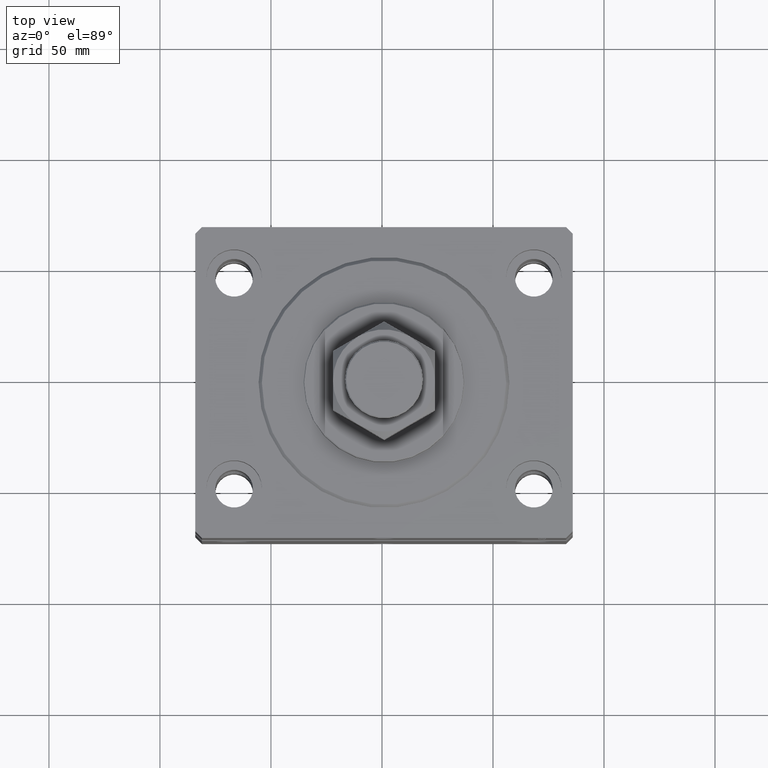
[diagram: clean part render]
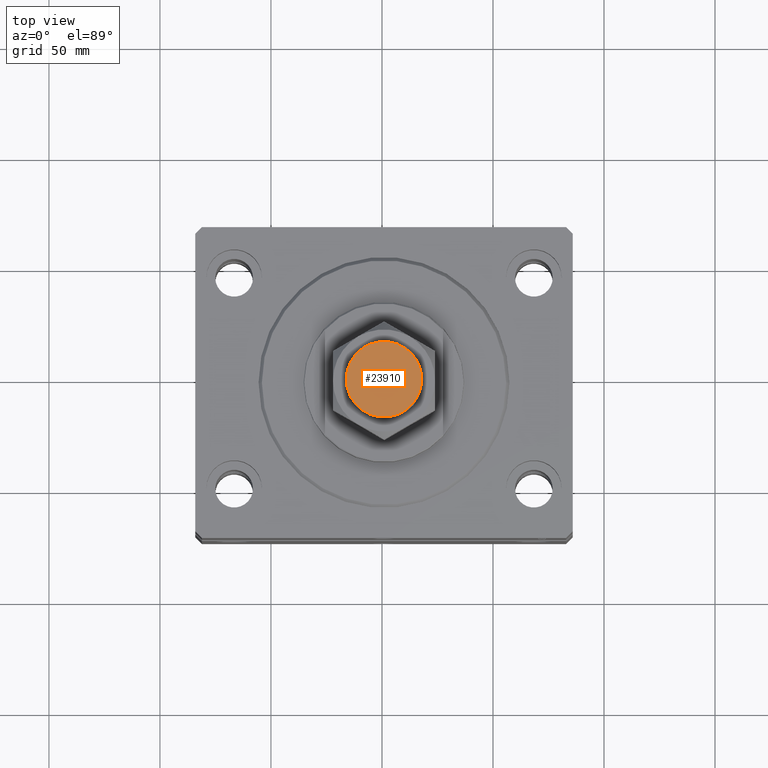
[diagram: same view with one face highlighted and labeled with its STEP entity id]
A machine part, top view. The second image highlights one B-rep face of the part: STEP entity #23910.
In plain terms, the highlighted planar face has unit normal (0, 0, 1).
Its self-contained STEP definition (entity closure, byte-faithful):
#2542 = EDGE_CURVE ( 'NONE', #10447, #3091, #17461, .T. ) ;
#3091 = VERTEX_POINT ( 'NONE', #35526 ) ;
#5760 = CARTESIAN_POINT ( 'NONE',  ( -16.99999999999998579, 0.000000000000000000, 60.00000000000000000 ) ) ;
#9529 = DIRECTION ( 'NONE',  ( 1.000000000000000000, 0.000000000000000000, 0.000000000000000000 ) ) ;
#10447 = VERTEX_POINT ( 'NONE', #5760 ) ;
#10613 = CARTESIAN_POINT ( 'NONE',  ( 0.000000000000000000, 0.000000000000000000, 60.00000000000000000 ) ) ;
#11516 = PLANE ( 'NONE',  #45991 ) ;
#11531 = EDGE_CURVE ( 'NONE', #3091, #10447, #36958, .T. ) ;
#12962 = DIRECTION ( 'NONE',  ( 0.000000000000000000, 0.000000000000000000, 1.000000000000000000 ) ) ;
#15720 = EDGE_LOOP ( 'NONE', ( #34786, #46121 ) ) ;
#17461 = CIRCLE ( 'NONE', #43824, 16.99999999999998579 ) ;
#19284 = FACE_OUTER_BOUND ( 'NONE', #15720, .T. ) ;
#22231 = DIRECTION ( 'NONE',  ( 0.000000000000000000, 0.000000000000000000, 1.000000000000000000 ) ) ;
#22233 = AXIS2_PLACEMENT_3D ( 'NONE', #25036, #25920, #9529 ) ;
#23910 = ADVANCED_FACE ( 'NONE', ( #19284 ), #11516, .T. ) ;
#25036 = CARTESIAN_POINT ( 'NONE',  ( 0.000000000000000000, 0.000000000000000000, 60.00000000000000000 ) ) ;
#25920 = DIRECTION ( 'NONE',  ( 0.000000000000000000, 0.000000000000000000, 1.000000000000000000 ) ) ;
#33407 = DIRECTION ( 'NONE',  ( 1.000000000000000000, 0.000000000000000000, 0.000000000000000000 ) ) ;
#34313 = DIRECTION ( 'NONE',  ( 1.000000000000000000, 0.000000000000000000, -0.000000000000000000 ) ) ;
#34786 = ORIENTED_EDGE ( 'NONE', *, *, #2542, .T. ) ;
#35526 = CARTESIAN_POINT ( 'NONE',  ( 16.99999999999998579, 2.112515728529183672E-15, 60.00000000000000000 ) ) ;
#36958 = CIRCLE ( 'NONE', #22233, 16.99999999999998579 ) ;
#43824 = AXIS2_PLACEMENT_3D ( 'NONE', #10613, #22231, #33407 ) ;
#45004 = CARTESIAN_POINT ( 'NONE',  ( 0.000000000000000000, 0.000000000000000000, 60.00000000000000000 ) ) ;
#45991 = AXIS2_PLACEMENT_3D ( 'NONE', #45004, #12962, #34313 ) ;
#46121 = ORIENTED_EDGE ( 'NONE', *, *, #11531, .T. ) ;